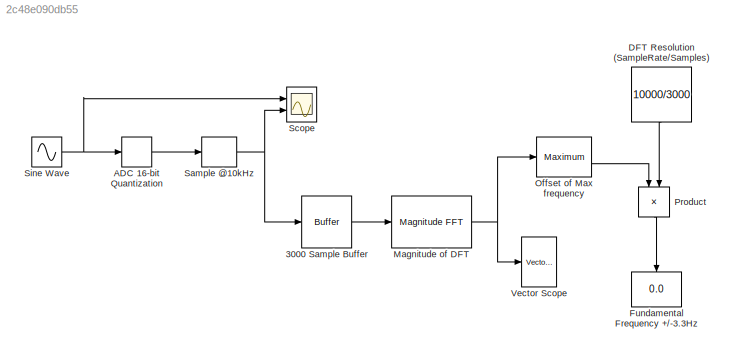
MODEL slx_2c48e090db55
KIND model
CONFIG AbsTol = auto
CONFIG EnableMultiTasking = off
CONFIG FixedStep = auto
CONFIG MaxStep = auto
CONFIG MinStep = auto
CONFIG RelTol = 1e-3
CONFIG SampleTimeConstraint = Unconstrained
CONFIG Solver = VariableStepAuto
CONFIG SolverName = VariableStepAuto
CONFIG StartTime = 0.0
CONFIG StopTime = 0.3
BLOCK [Buffer] 3000 Sample Buffer
  N = 3000
  OutputFrames = off
  TreatMby1Signals = One channel
BLOCK [Quantizer] ADC 16-bit Quantization
  QuantizationInterval = 1/ 2^15
BLOCK [Constant] DFT Resolution (SampleRate//Samples)
  Value = 10000/3000
BLOCK [Display] Fundamental Frequency +//-3.3Hz
  Decimation = 1
  Ports = [1]
BLOCK [Reference] Magnitude of DFT  REF=dspspect3/Magnitude
FFT
  Ports = [1, 1]
  SourceBlock = dspspect3/Magnitude\nFFT
  SourceType = Magnitude FFT
BLOCK [Reference] Offset of Max frequency  REF=dspstat3/Maximum
  Ports = [1, 2]
  SourceBlock = dspstat3/Maximum
  SourceType = Maximum
  UserDataPersistent = on
BLOCK [Product] Product
  InputSameDT = off
  OutDataTypeStr = Inherit: Inherit via internal rule
  Ports = [2, 1]
  RndMeth = Floor
  SaturateOnIntegerOverflow = off
BLOCK [ZeroOrderHold] Sample @10kHz
  SampleTime = 1/10000
BLOCK [Scope] Scope
  NumInputPorts = 2
  Ports = [2]
  ScopeSpecificationString = Simulink.scopes.TimeScopeBlockCfg('CurrentConfiguration', extmgr.ConfigurationSet(extmgr.Configuration('Core','General UI',true),extmgr.Configuration('Core','Source UI',true),extmgr.Configuration('Sources','WiredSimulink',true),extmgr.Configuration('Visuals','Time Domain',true,'SerializedDisplays',{struct('MinYLimReal','-1.25','MaxYLimReal','1.25','YLabelReal','','MinYLimMag','0.00000','MaxYLimMag...<+2074ch>
BLOCK [Sin] Sine Wave
  Frequency = 2*pi*1004
  Ports = [0, 1]
  SampleTime = 1/100000
BLOCK [Reference] Vector Scope  REF=dspsnks4/Vector
Scope
  Ports = [1]
  SourceBlock = dspsnks4/Vector\nScope
  SourceType = Vector Scope
LINE 3000 Sample Buffer:1 -> Magnitude of DFT:1
LINE ADC 16-bit Quantization:1 -> Sample @10kHz:1
LINE DFT Resolution (SampleRate//Samples):1 -> Product:2
NET Magnitude of DFT:1 -> Offset of Max frequency:1, Vector Scope:1
LINE Offset of Max frequency:2 -> Product:1
LINE Product:1 -> Fundamental Frequency +//-3.3Hz:1
NET Sample @10kHz:1 -> 3000 Sample Buffer:1, Scope:2
NET Sine Wave:1 -> ADC 16-bit Quantization:1, Scope:1
note: NET lines group one-source signal fan-out (src -> all destinations, sorted); 1:1 wires keep LINE
